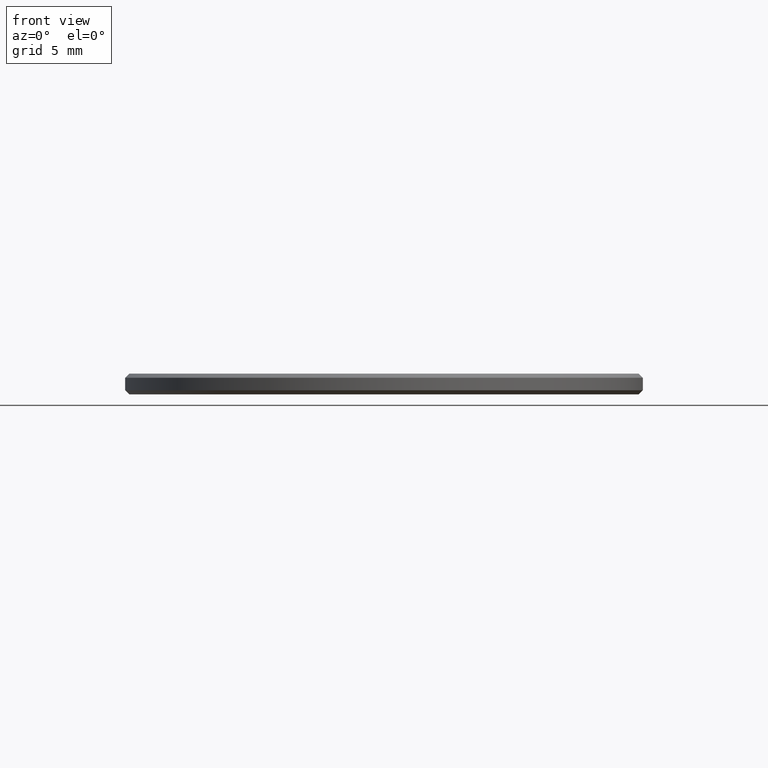
[diagram: clean part render]
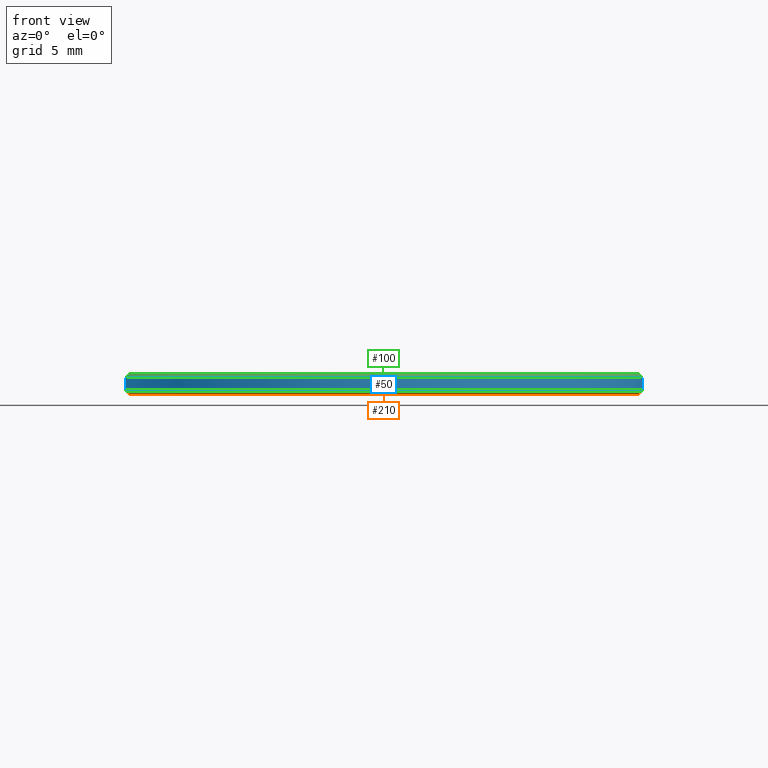
[diagram: same view with three faces highlighted in distinct colors, each labeled with its STEP entity id]
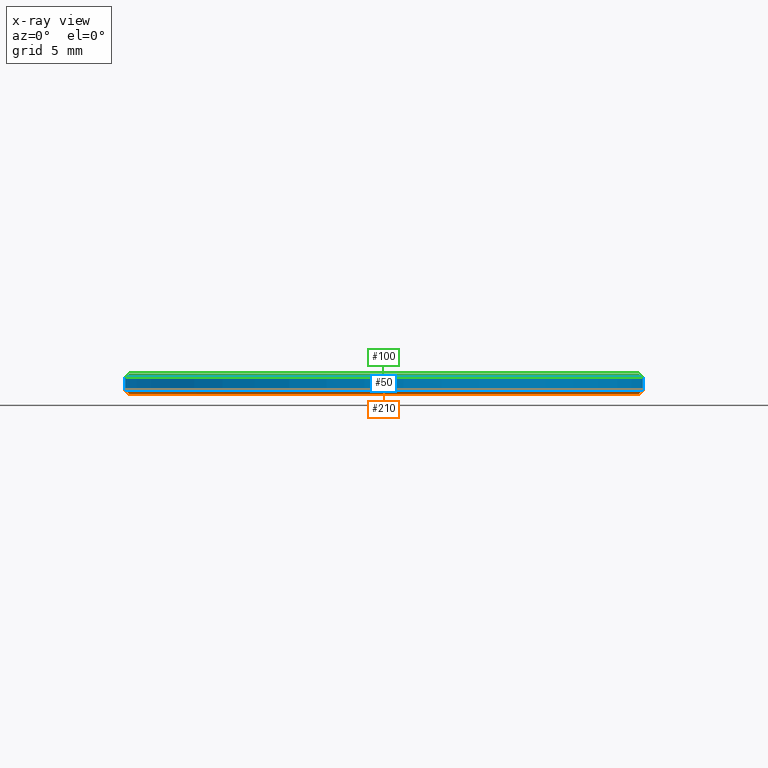
[diagram: x-ray of the same camera — body ghosted, the three highlighted faces saturated]
A machine part, front view with three faces highlighted in distinct colors.
The next image is the same camera in x-ray (body ghosted, the three faces saturated) — at least one of them is partly hidden behind the body in this view.
Their STEP definitions:

[orange] entity #210 — the highlighted conical surface has half-angle 45 deg.
#5 = EDGE_CURVE ( 'NONE', #46, #105, #25, .T. ) ;
#16 = CARTESIAN_POINT ( 'NONE',  ( 12.30000000000000249, 0.000000000000000000, 0.000000000000000000 ) ) ;
#18 = CARTESIAN_POINT ( 'NONE',  ( 12.50000000000000000, 1.530808498934191521E-15, 0.1999999999999987899 ) ) ;
#21 = CARTESIAN_POINT ( 'NONE',  ( 0.000000000000000000, 0.000000000000000000, 0.1999999999999987899 ) ) ;
#22 = DIRECTION ( 'NONE',  ( 0.7071067811865474617, 0.000000000000000000, 0.7071067811865474617 ) ) ;
#25 = CIRCLE ( 'NONE', #66, 12.30000000000000249 ) ;
#28 = ORIENTED_EDGE ( 'NONE', *, *, #5, .F. ) ;
#30 = AXIS2_PLACEMENT_3D ( 'NONE', #21, #181, #197 ) ;
#35 = EDGE_CURVE ( 'NONE', #105, #132, #142, .T. ) ;
#40 = FACE_OUTER_BOUND ( 'NONE', #116, .T. ) ;
#46 = VERTEX_POINT ( 'NONE', #16 ) ;
#53 = LINE ( 'NONE', #56, #166 ) ;
#56 = CARTESIAN_POINT ( 'NONE',  ( 12.50000000000000000, 0.000000000000000000, 0.1999999999999987899 ) ) ;
#66 = AXIS2_PLACEMENT_3D ( 'NONE', #138, #234, #68 ) ;
#68 = DIRECTION ( 'NONE',  ( 1.000000000000000000, 0.000000000000000000, 0.000000000000000000 ) ) ;
#78 = DIRECTION ( 'NONE',  ( 1.000000000000000000, 0.000000000000000000, 0.000000000000000000 ) ) ;
#95 = CIRCLE ( 'NONE', #229, 12.50000000000000000 ) ;
#105 = VERTEX_POINT ( 'NONE', #179 ) ;
#116 = EDGE_LOOP ( 'NONE', ( #188, #28, #227, #212 ) ) ;
#132 = VERTEX_POINT ( 'NONE', #219 ) ;
#138 = CARTESIAN_POINT ( 'NONE',  ( 0.000000000000000000, 0.000000000000000000, 0.000000000000000000 ) ) ;
#142 = LINE ( 'NONE', #144, #218 ) ;
#144 = CARTESIAN_POINT ( 'NONE',  ( -12.50000000000000000, 1.530808498934191521E-15, 0.1999999999999987899 ) ) ;
#157 = VERTEX_POINT ( 'NONE', #18 ) ;
#160 = CARTESIAN_POINT ( 'NONE',  ( 0.000000000000000000, 0.000000000000000000, 0.1999999999999987899 ) ) ;
#166 = VECTOR ( 'NONE', #22, 1000.000000000000114 ) ;
#167 = EDGE_CURVE ( 'NONE', #46, #157, #53, .T. ) ;
#172 = EDGE_CURVE ( 'NONE', #132, #157, #95, .T. ) ;
#173 = DIRECTION ( 'NONE',  ( -0.7071067811865474617, 8.659560562354932858E-17, 0.7071067811865474617 ) ) ;
#179 = CARTESIAN_POINT ( 'NONE',  ( -12.30000000000000249, 1.518562030942718164E-15, 0.000000000000000000 ) ) ;
#181 = DIRECTION ( 'NONE',  ( -0.000000000000000000, -0.000000000000000000, 1.000000000000000000 ) ) ;
#188 = ORIENTED_EDGE ( 'NONE', *, *, #35, .F. ) ;
#189 = CONICAL_SURFACE ( 'NONE', #30, 12.50000000000000000, 0.7853981633974482790 ) ;
#197 = DIRECTION ( 'NONE',  ( 1.000000000000000000, 0.000000000000000000, 0.000000000000000000 ) ) ;
#210 = ADVANCED_FACE ( 'NONE', ( #40 ), #189, .T. ) ;
#212 = ORIENTED_EDGE ( 'NONE', *, *, #172, .F. ) ;
#218 = VECTOR ( 'NONE', #173, 1000.000000000000114 ) ;
#219 = CARTESIAN_POINT ( 'NONE',  ( -12.50000000000000000, 0.000000000000000000, 0.1999999999999987899 ) ) ;
#222 = DIRECTION ( 'NONE',  ( -0.000000000000000000, -0.000000000000000000, 1.000000000000000000 ) ) ;
#227 = ORIENTED_EDGE ( 'NONE', *, *, #167, .T. ) ;
#229 = AXIS2_PLACEMENT_3D ( 'NONE', #160, #222, #78 ) ;
#234 = DIRECTION ( 'NONE',  ( -0.000000000000000000, -0.000000000000000000, -1.000000000000000000 ) ) ;

[blue] entity #50 — the highlighted cylindrical surface (partial cylindrical patch) has radius 12.5 mm, axis along (-0, -0, -1).
#3 = CARTESIAN_POINT ( 'NONE',  ( 12.50000000000000000, 1.530808498934191521E-15, 0.8000000000000029310 ) ) ;
#13 = DIRECTION ( 'NONE',  ( -1.000000000000000000, 0.000000000000000000, 0.000000000000000000 ) ) ;
#17 = EDGE_CURVE ( 'NONE', #231, #157, #103, .T. ) ;
#18 = CARTESIAN_POINT ( 'NONE',  ( 12.50000000000000000, 1.530808498934191521E-15, 0.1999999999999987899 ) ) ;
#23 = CIRCLE ( 'NONE', #126, 12.50000000000000000 ) ;
#32 = ORIENTED_EDGE ( 'NONE', *, *, #172, .T. ) ;
#38 = DIRECTION ( 'NONE',  ( 0.000000000000000000, 0.000000000000000000, -1.000000000000000000 ) ) ;
#50 = ADVANCED_FACE ( 'NONE', ( #87 ), #118, .T. ) ;
#51 = CARTESIAN_POINT ( 'NONE',  ( 0.000000000000000000, 0.000000000000000000, 1.000000000000000000 ) ) ;
#57 = CARTESIAN_POINT ( 'NONE',  ( -12.50000000000000000, 0.000000000000000000, 1.000000000000000000 ) ) ;
#58 = CARTESIAN_POINT ( 'NONE',  ( -12.50000000000000000, 0.000000000000000000, 0.8000000000000029310 ) ) ;
#71 = CARTESIAN_POINT ( 'NONE',  ( 12.50000000000000000, 1.530808498934191521E-15, 1.000000000000000000 ) ) ;
#74 = AXIS2_PLACEMENT_3D ( 'NONE', #51, #192, #13 ) ;
#77 = LINE ( 'NONE', #57, #201 ) ;
#78 = DIRECTION ( 'NONE',  ( 1.000000000000000000, 0.000000000000000000, 0.000000000000000000 ) ) ;
#80 = CARTESIAN_POINT ( 'NONE',  ( 0.000000000000000000, 0.000000000000000000, 0.8000000000000029310 ) ) ;
#81 = EDGE_LOOP ( 'NONE', ( #168, #203, #113, #32 ) ) ;
#87 = FACE_OUTER_BOUND ( 'NONE', #81, .T. ) ;
#95 = CIRCLE ( 'NONE', #229, 12.50000000000000000 ) ;
#103 = LINE ( 'NONE', #71, #106 ) ;
#106 = VECTOR ( 'NONE', #211, 1000.000000000000000 ) ;
#113 = ORIENTED_EDGE ( 'NONE', *, *, #228, .T. ) ;
#118 = CYLINDRICAL_SURFACE ( 'NONE', #74, 12.50000000000000000 ) ;
#126 = AXIS2_PLACEMENT_3D ( 'NONE', #80, #38, #200 ) ;
#132 = VERTEX_POINT ( 'NONE', #219 ) ;
#157 = VERTEX_POINT ( 'NONE', #18 ) ;
#160 = CARTESIAN_POINT ( 'NONE',  ( 0.000000000000000000, 0.000000000000000000, 0.1999999999999987899 ) ) ;
#168 = ORIENTED_EDGE ( 'NONE', *, *, #17, .F. ) ;
#172 = EDGE_CURVE ( 'NONE', #132, #157, #95, .T. ) ;
#174 = VERTEX_POINT ( 'NONE', #58 ) ;
#182 = EDGE_CURVE ( 'NONE', #231, #174, #23, .T. ) ;
#192 = DIRECTION ( 'NONE',  ( -0.000000000000000000, -0.000000000000000000, -1.000000000000000000 ) ) ;
#200 = DIRECTION ( 'NONE',  ( 1.000000000000000000, 0.000000000000000000, 0.000000000000000000 ) ) ;
#201 = VECTOR ( 'NONE', #204, 1000.000000000000000 ) ;
#203 = ORIENTED_EDGE ( 'NONE', *, *, #182, .T. ) ;
#204 = DIRECTION ( 'NONE',  ( -0.000000000000000000, -0.000000000000000000, -1.000000000000000000 ) ) ;
#211 = DIRECTION ( 'NONE',  ( -0.000000000000000000, -0.000000000000000000, -1.000000000000000000 ) ) ;
#219 = CARTESIAN_POINT ( 'NONE',  ( -12.50000000000000000, 0.000000000000000000, 0.1999999999999987899 ) ) ;
#222 = DIRECTION ( 'NONE',  ( -0.000000000000000000, -0.000000000000000000, 1.000000000000000000 ) ) ;
#228 = EDGE_CURVE ( 'NONE', #174, #132, #77, .T. ) ;
#229 = AXIS2_PLACEMENT_3D ( 'NONE', #160, #222, #78 ) ;
#231 = VERTEX_POINT ( 'NONE', #3 ) ;

[green] entity #100 — the highlighted conical surface has half-angle 45 deg.
#3 = CARTESIAN_POINT ( 'NONE',  ( 12.50000000000000000, 1.530808498934191521E-15, 0.8000000000000029310 ) ) ;
#11 = CIRCLE ( 'NONE', #41, 12.29999999999999893 ) ;
#12 = EDGE_LOOP ( 'NONE', ( #117, #135, #176, #64 ) ) ;
#15 = VECTOR ( 'NONE', #240, 1000.000000000000000 ) ;
#23 = CIRCLE ( 'NONE', #126, 12.50000000000000000 ) ;
#29 = CARTESIAN_POINT ( 'NONE',  ( 12.29999999999999893, 1.518562030942717967E-15, 1.000000000000000000 ) ) ;
#37 = LINE ( 'NONE', #215, #146 ) ;
#38 = DIRECTION ( 'NONE',  ( 0.000000000000000000, 0.000000000000000000, -1.000000000000000000 ) ) ;
#41 = AXIS2_PLACEMENT_3D ( 'NONE', #52, #191, #70 ) ;
#49 = VERTEX_POINT ( 'NONE', #29 ) ;
#52 = CARTESIAN_POINT ( 'NONE',  ( 0.000000000000000000, 0.000000000000000000, 1.000000000000000000 ) ) ;
#58 = CARTESIAN_POINT ( 'NONE',  ( -12.50000000000000000, 0.000000000000000000, 0.8000000000000029310 ) ) ;
#64 = ORIENTED_EDGE ( 'NONE', *, *, #182, .F. ) ;
#65 = CONICAL_SURFACE ( 'NONE', #175, 12.29999999999999893, 0.7853981633974612686 ) ;
#70 = DIRECTION ( 'NONE',  ( 1.000000000000000000, 0.000000000000000000, 0.000000000000000000 ) ) ;
#73 = FACE_OUTER_BOUND ( 'NONE', #12, .T. ) ;
#80 = CARTESIAN_POINT ( 'NONE',  ( 0.000000000000000000, 0.000000000000000000, 0.8000000000000029310 ) ) ;
#93 = EDGE_CURVE ( 'NONE', #99, #49, #11, .T. ) ;
#94 = CARTESIAN_POINT ( 'NONE',  ( 12.29999999999999893, 1.506315562951244216E-15, 1.000000000000000000 ) ) ;
#99 = VERTEX_POINT ( 'NONE', #124 ) ;
#100 = ADVANCED_FACE ( 'NONE', ( #73 ), #65, .T. ) ;
#107 = DIRECTION ( 'NONE',  ( -0.7071067811865566766, 0.000000000000000000, -0.7071067811865383579 ) ) ;
#108 = DIRECTION ( 'NONE',  ( 0.000000000000000000, 0.000000000000000000, -1.000000000000000000 ) ) ;
#110 = CARTESIAN_POINT ( 'NONE',  ( 0.000000000000000000, 0.000000000000000000, 1.000000000000000000 ) ) ;
#117 = ORIENTED_EDGE ( 'NONE', *, *, #143, .F. ) ;
#124 = CARTESIAN_POINT ( 'NONE',  ( -12.29999999999999893, 0.000000000000000000, 1.000000000000000000 ) ) ;
#126 = AXIS2_PLACEMENT_3D ( 'NONE', #80, #38, #200 ) ;
#135 = ORIENTED_EDGE ( 'NONE', *, *, #93, .F. ) ;
#141 = EDGE_CURVE ( 'NONE', #99, #174, #37, .T. ) ;
#143 = EDGE_CURVE ( 'NONE', #49, #231, #177, .T. ) ;
#146 = VECTOR ( 'NONE', #107, 1000.000000000000000 ) ;
#174 = VERTEX_POINT ( 'NONE', #58 ) ;
#175 = AXIS2_PLACEMENT_3D ( 'NONE', #110, #108, #237 ) ;
#176 = ORIENTED_EDGE ( 'NONE', *, *, #141, .T. ) ;
#177 = LINE ( 'NONE', #94, #15 ) ;
#182 = EDGE_CURVE ( 'NONE', #231, #174, #23, .T. ) ;
#191 = DIRECTION ( 'NONE',  ( 0.000000000000000000, 0.000000000000000000, 1.000000000000000000 ) ) ;
#200 = DIRECTION ( 'NONE',  ( 1.000000000000000000, 0.000000000000000000, 0.000000000000000000 ) ) ;
#215 = CARTESIAN_POINT ( 'NONE',  ( -12.29999999999999893, 0.000000000000000000, 1.000000000000000000 ) ) ;
#231 = VERTEX_POINT ( 'NONE', #3 ) ;
#237 = DIRECTION ( 'NONE',  ( -1.000000000000000000, 0.000000000000000000, 0.000000000000000000 ) ) ;
#240 = DIRECTION ( 'NONE',  ( 0.7071067811865566766, 8.659560562355045024E-17, -0.7071067811865383579 ) ) ;